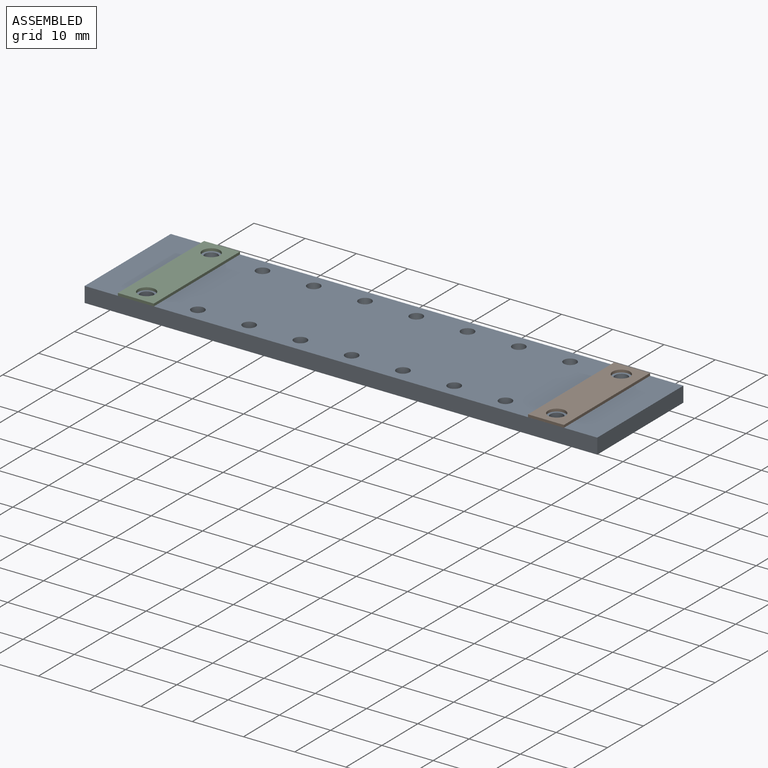
[diagram: assembled view]
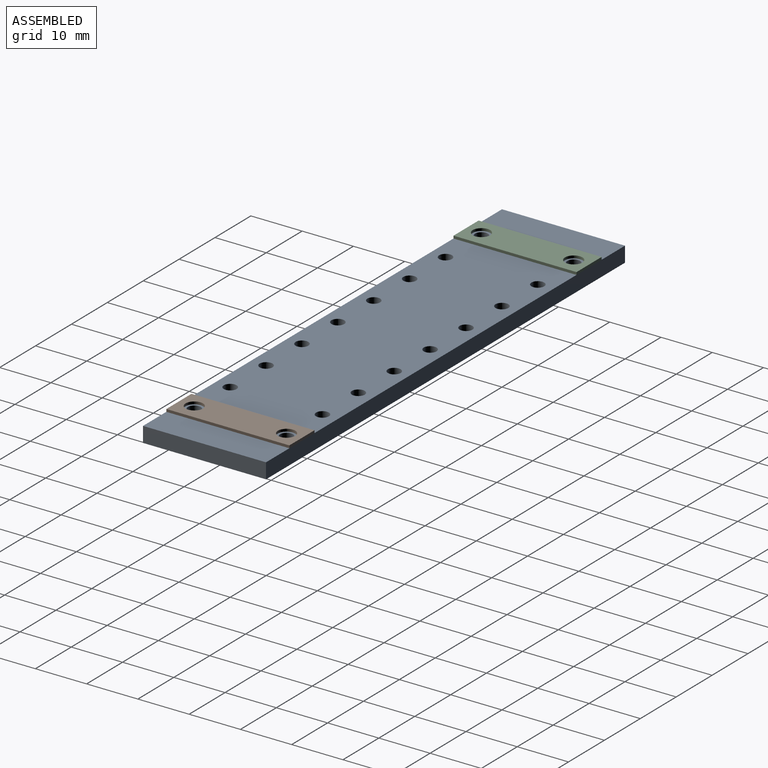
[diagram: assembled view, second angle]
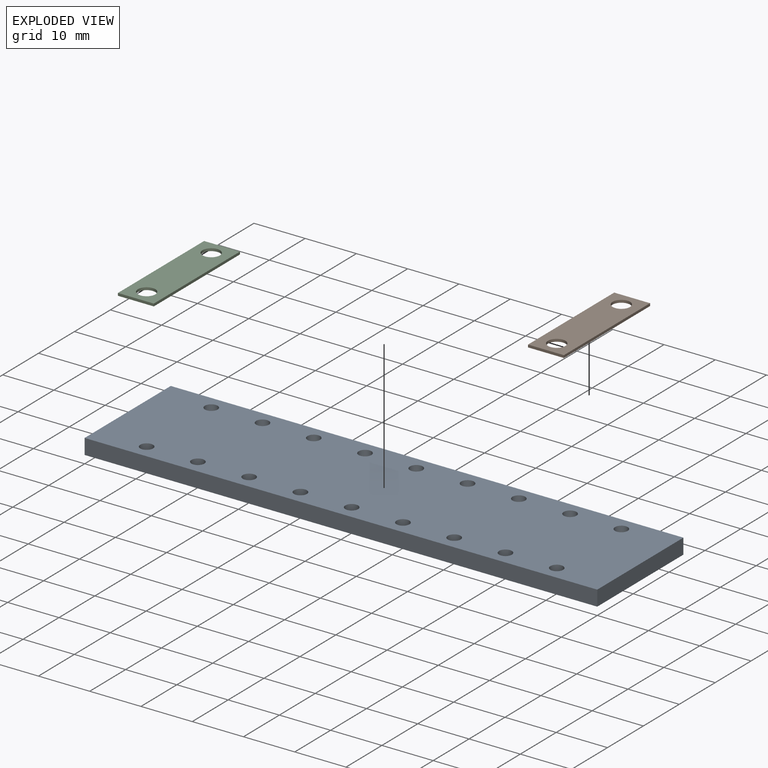
[diagram: exploded view]
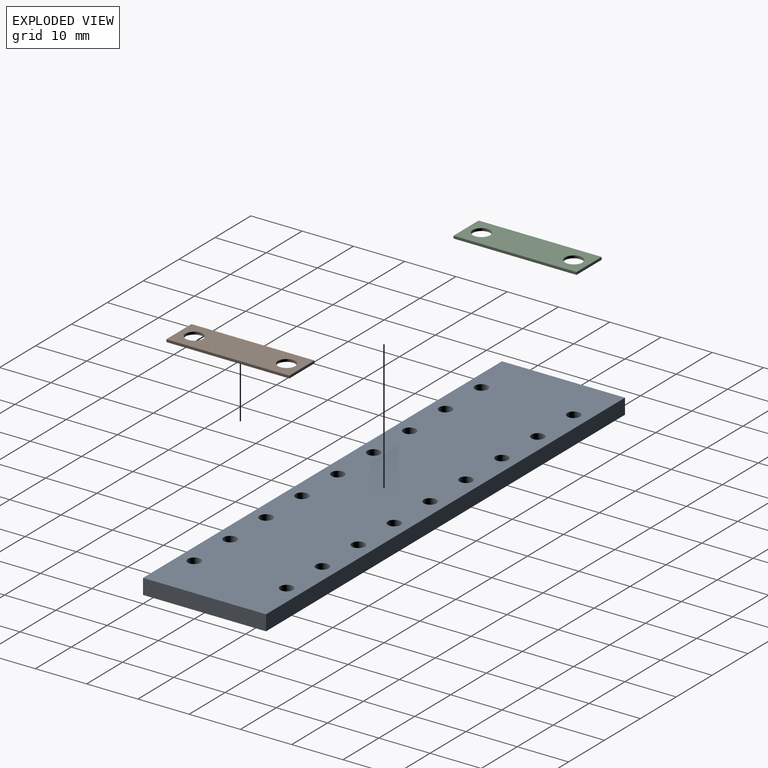
[diagram: exploded view, second angle]
ASSEMBLY  parts=3 mates=6
PART A: 24 faces, bbox 100x24x3 mm
  f0: plane 24x3mm, normal (-1,0,0), area 72mm2, adj f1,f3,f4,f5
  f1: plane 100x3mm, normal (0,-1,0), area 300mm2, adj f0,f2,f4,f5
  f2: plane 24x3mm, normal (1,0,0), area 72mm2, adj f1,f3,f4,f5
  f3: plane 100x3mm, normal (0,1,0), area 300mm2, adj f0,f2,f4,f5
  f4: plane 100x24mm, normal (0,0,1), area 2311.6mm2, adj f0,f1,f2,f3,f6,f7,f8,f9
  f5: plane 100x24mm, normal (0,0,-1), area 2311.6mm2, adj f0,f1,f2,f3,f6,f7,f8,f9
  f6: cylinder r=1.25mm len=3mm, axis (0,0,1), area 23.6mm2, adj f4,f5
  f7: cylinder r=1.25mm len=3mm, axis (0,0,1), area 23.6mm2, adj f4,f5
  f8: cylinder r=1.25mm len=3mm, axis (0,0,1), area 23.6mm2, adj f4,f5
  f9: cylinder r=1.25mm len=3mm, axis (0,0,1), area 23.6mm2, adj f4,f5
  f10: cylinder r=1.25mm len=3mm, axis (0,0,1), area 23.6mm2, adj f4,f5
  f11: cylinder r=1.25mm len=3mm, axis (0,0,1), area 23.6mm2, adj f4,f5
  f12: cylinder r=1.25mm len=3mm, axis (0,0,1), area 23.6mm2, adj f4,f5
  f13: cylinder r=1.25mm len=3mm, axis (0,0,1), area 23.6mm2, adj f4,f5
  f14: cylinder r=1.25mm len=3mm, axis (0,0,1), area 23.6mm2, adj f4,f5
  f15: cylinder r=1.25mm len=3mm, axis (0,0,1), area 23.6mm2, adj f4,f5
  f16: cylinder r=1.25mm len=3mm, axis (0,0,1), area 23.6mm2, adj f4,f5
  f17: cylinder r=1.25mm len=3mm, axis (0,0,1), area 23.6mm2, adj f4,f5
  f18: cylinder r=1.25mm len=3mm, axis (0,0,1), area 23.6mm2, adj f4,f5
  f19: cylinder r=1.25mm len=3mm, axis (0,0,1), area 23.6mm2, adj f4,f5
  f20: cylinder r=1.25mm len=3mm, axis (0,0,1), area 23.6mm2, adj f4,f5
  f21: cylinder r=1.25mm len=3mm, axis (0,0,1), area 23.6mm2, adj f4,f5
  f22: cylinder r=1.25mm len=3mm, axis (0,0,1), area 23.6mm2, adj f4,f5
  f23: cylinder r=1.25mm len=3mm, axis (0,0,1), area 23.6mm2, adj f4,f5
PART B: 8 faces, bbox 7x24x0.5 mm
  f0: plane 24x0.5mm, normal (-1,0,0), area 12mm2, adj f1,f3,f4,f5
  f1: plane 7x0.5mm, normal (0,-1,0), area 3.5mm2, adj f0,f2,f4,f5
  f2: plane 24x0.5mm, normal (1,0,0), area 12mm2, adj f1,f3,f4,f5
  f3: plane 7x0.5mm, normal (0,1,0), area 3.5mm2, adj f0,f2,f4,f5
  f4: plane 24x7mm, normal (0,0,1), area 149.8mm2, adj f0,f1,f2,f3,f6,f7
  f5: plane 24x7mm, normal (0,0,-1), area 149.8mm2, adj f0,f1,f2,f3,f6,f7
  f6: cylinder r=1.7mm len=3.4mm, axis (0,0,1), area 5.3mm2, adj f4,f5
  f7: cylinder r=1.7mm len=3.4mm, axis (0,0,1), area 5.3mm2, adj f4,f5
PART C: same geometry as B
PLACE A t=(0,0,-3)mm
PLACE B t=(86.5,0,0)mm
PLACE C t=(6.5,0,0)mm
MATE cylindrical B.f6 <-> A.f11  axis (0,0,1) through (90,3,0.5)mm
MATE planar B.f6 <-> A.f4  axis (0,0,-1) through (90,3,0)mm
MATE planar C.f5 <-> A.f4  axis (0,0,-1) through (13.5,12,0)mm
MATE cylindrical C.f7 <-> A.f6  axis (0,0,1) through (10,21,0.5)mm
MATE cylindrical B.f7 <-> A.f12  axis (0,0,1) through (90,21,0.5)mm
MATE cylindrical C.f6 <-> A.f18  axis (0,0,1) through (10,3,0.5)mm
